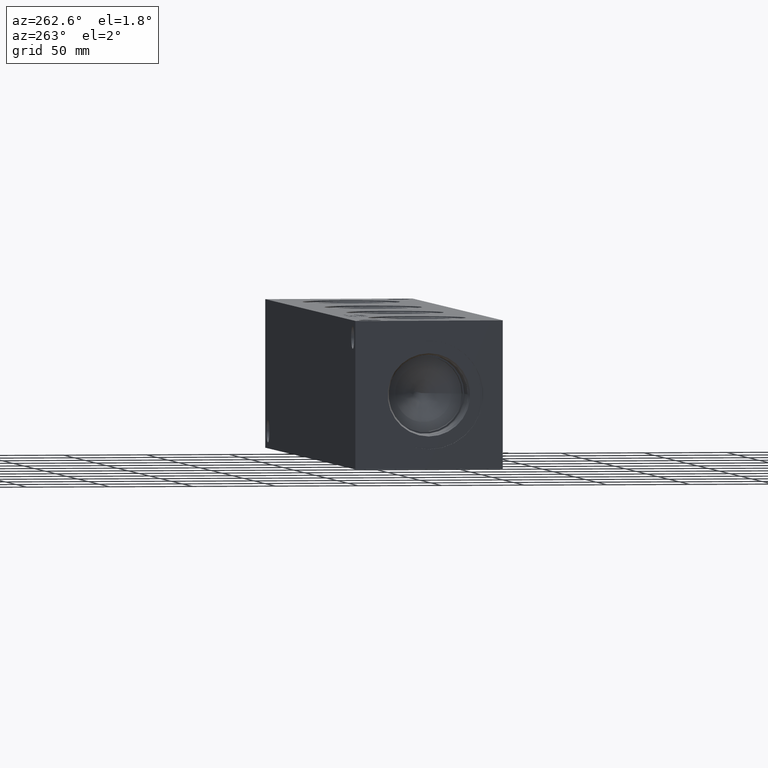
[diagram: clean part render]
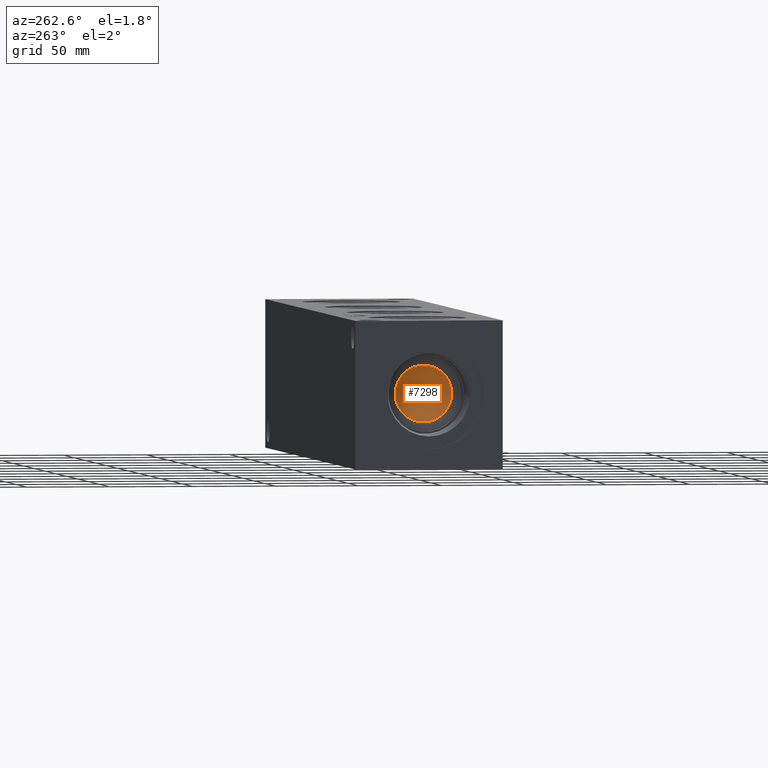
[diagram: same view with one face highlighted and labeled with its STEP entity id]
A machine part, auxiliary view. The second image highlights one B-rep face of the part: STEP entity #7298.
In plain terms, the highlighted conical surface has half-angle 60 deg.
Its self-contained STEP definition (entity closure, byte-faithful):
#18=CONICAL_SURFACE('',#7639,11.1125,1.0471975511966);
#118=CIRCLE('',#7640,17.038839122856);
#855=FACE_OUTER_BOUND('',#1269,.T.);
#1269=EDGE_LOOP('',(#6168,#6169,#6170));
#1993=LINE('',#12324,#2691);
#2691=VECTOR('',#8963,11.1125);
#3334=VERTEX_POINT('',#12321);
#3335=VERTEX_POINT('',#12323);
#4303=EDGE_CURVE('',#3334,#3334,#118,.T.);
#4304=EDGE_CURVE('',#3334,#3335,#1993,.T.);
#6168=ORIENTED_EDGE('',*,*,#4303,.F.);
#6169=ORIENTED_EDGE('',*,*,#4304,.T.);
#6170=ORIENTED_EDGE('',*,*,#4304,.F.);
#7298=ADVANCED_FACE('',(#855),#18,.F.);
#7639=AXIS2_PLACEMENT_3D('',#12320,#8959,#8960);
#7640=AXIS2_PLACEMENT_3D('',#12322,#8961,#8962);
#8959=DIRECTION('center_axis',(-1.,0.,0.));
#8960=DIRECTION('ref_axis',(0.,1.,0.));
#8961=DIRECTION('center_axis',(1.,0.,0.));
#8962=DIRECTION('ref_axis',(0.,1.,0.));
#8963=DIRECTION('',(0.5,0.866025403784439,-1.06057523872491E-16));
#12320=CARTESIAN_POINT('Origin',(29.7791948663697,44.45,44.45));
#12321=CARTESIAN_POINT('',(26.3576213784798,27.411160877144,44.45));
#12322=CARTESIAN_POINT('Origin',(26.3576213784798,44.45,44.45));
#12323=CARTESIAN_POINT('',(36.1949997327394,44.45,44.45));
#12324=CARTESIAN_POINT('',(29.7791948663697,33.3375,44.45));